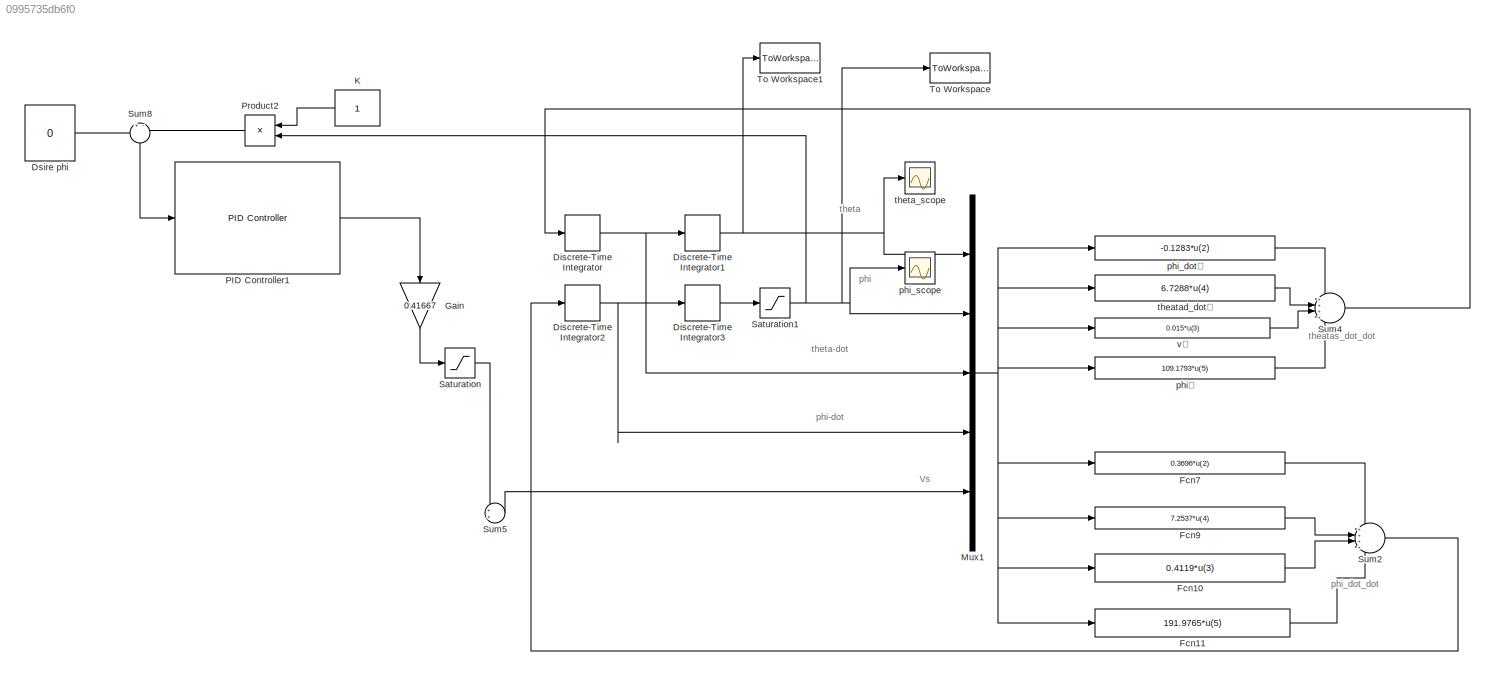
MODEL slx_0995735db6f0
KIND model
CONFIG AbsTol = auto
CONFIG EnableMultiTasking = on
CONFIG FixedStep = auto
CONFIG MaxStep = auto
CONFIG MinStep = auto
CONFIG RelTol = 1e-3
CONFIG SampleTimeConstraint = Unconstrained
CONFIG Solver = VariableStepAuto
CONFIG SolverName = VariableStepAuto
CONFIG StartTime = 0.0
CONFIG StopTime = 1.5
BLOCK [DiscreteIntegrator] Discrete-Time Integrator
  ICPrevOutput = DiscIntNeverNeededParam
  ICPrevScaledInput = DiscIntNeverNeededParam
  InitialConditionSetting = Auto
  Ports = [1, 1]
  SampleTime = 0.001
BLOCK [DiscreteIntegrator] Discrete-Time Integrator1
  ICPrevOutput = DiscIntNeverNeededParam
  ICPrevScaledInput = DiscIntNeverNeededParam
  InitialConditionSetting = Auto
  Ports = [1, 1]
  SampleTime = 0.001
BLOCK [DiscreteIntegrator] Discrete-Time Integrator2
  ICPrevOutput = DiscIntNeverNeededParam
  ICPrevScaledInput = DiscIntNeverNeededParam
  InitialConditionSetting = Auto
  Ports = [1, 1]
  SampleTime = 0.001
BLOCK [DiscreteIntegrator] Discrete-Time Integrator3
  ICPrevOutput = DiscIntNeverNeededParam
  ICPrevScaledInput = DiscIntNeverNeededParam
  InitialCondition = pi/180
  InitialConditionSetting = Auto
  Ports = [1, 1]
  SampleTime = 0.001
  gainval = 1
BLOCK [Constant] Dsire phi
  SampleTime = 0.001
  Value = 0
BLOCK [Fcn] Fcn10
  Expr = 0.4119*u(3)
BLOCK [Fcn] Fcn11
  Expr = 191.9765*u(5)
BLOCK [Fcn] Fcn7
  Expr = 0.3696*u(2)
BLOCK [Fcn] Fcn9
  Expr = 7.2537*u(4)
BLOCK [Gain] Gain
  Gain = 0.41667
  OutDataTypeStr = Inherit: Inherit via internal rule
  ParamDataTypeStr = Inherit: Inherit via internal rule
  SaturateOnIntegerOverflow = off
BLOCK [Constant] K
  SampleTime = 0.001
  VectorParams1D = off
BLOCK [Mux] Mux1
  DisplayOption = bar
  Inputs = 5
  Ports = [5, 1]
BLOCK [Reference] PID Controller1  REF=simulink/Continuous/PID Controller
  Ports = [1, 1]
  SourceBlock = simulink/Continuous/PID Controller
  SourceProductBaseCode = SL
  SourceProductName = Simulink
  SourceType = PID 1dof
BLOCK [Product] Product2
  InputSameDT = off
  OutDataTypeStr = Inherit: Inherit via internal rule
  Ports = [2, 1]
  RndMeth = Floor
  SaturateOnIntegerOverflow = off
BLOCK [Saturate] Saturation
  InputPortMap = u0
  LowerLimit = -5
  Ports = [1, 1]
  UpperLimit = 5
BLOCK [Saturate] Saturation1
  InputPortMap = u0
  LowerLimit = -1.75
  Ports = [1, 1]
  UpperLimit = 1.75
BLOCK [Sum] Sum2
  IconShape = round
  InputSameDT = off
  Inputs = ++++
  OutDataTypeStr = Inherit: Inherit via internal rule
  Ports = [4, 1]
  SaturateOnIntegerOverflow = off
BLOCK [Sum] Sum4
  IconShape = round
  InputSameDT = off
  Inputs = ++++
  OutDataTypeStr = Inherit: Inherit via internal rule
  Ports = [4, 1]
  SaturateOnIntegerOverflow = off
BLOCK [Sum] Sum5
  IconShape = round
  InputSameDT = off
  OutDataTypeStr = Inherit: Inherit via internal rule
  Ports = [2, 1]
  SaturateOnIntegerOverflow = off
BLOCK [Sum] Sum8
  IconShape = round
  InputSameDT = off
  Inputs = +-
  OutDataTypeStr = Inherit: Inherit via internal rule
  Ports = [2, 1]
  SaturateOnIntegerOverflow = off
BLOCK [ToWorkspace] To Workspace
  FixptAsFi = on
  MaxDataPoints = inf
  Ports = [1]
  SampleTime = -1
  Save2DSignal = 3-D array (concatenate along third dimension)
  VariableName = phi
BLOCK [ToWorkspace] To Workspace1
  FixptAsFi = on
  MaxDataPoints = inf
  Ports = [1]
  SampleTime = -1
  Save2DSignal = 3-D array (concatenate along third dimension)
  VariableName = theatad
BLOCK [Fcn] phi_dot項
  Expr = -0.1283*u(2)
BLOCK [Scope] phi_scope
  Floating = off
  NumInputPorts = 1
  Ports = [1]
  ScopeSpecificationString = Simulink.scopes.TimeScopeBlockCfg('CurrentConfiguration', extmgr.ConfigurationSet(extmgr.Configuration('Core','General UI',true),extmgr.Configuration('Core','Source UI',true),extmgr.Configuration('Sources','WiredSimulink',true,'DataLoggingVariableName','ScopeData1'),extmgr.Configuration('Visuals','Time Domain',true,'TimeAxisLabels','All','SerializedDisplays',{struct('MinYLimReal','-0.03','MaxYLimR...<+1505ch>
BLOCK [Fcn] phi項
  Expr = 109.1793*u(5)
BLOCK [Fcn] theatad_dot項
  Expr = 6.7288*u(4)
BLOCK [Scope] theta_scope
  Floating = off
  NumInputPorts = 1
  Ports = [1]
  ScopeSpecificationString = Simulink.scopes.TimeScopeBlockCfg('CurrentConfiguration', extmgr.ConfigurationSet(extmgr.Configuration('Core','General UI',true),extmgr.Configuration('Core','Source UI',true),extmgr.Configuration('Sources','WiredSimulink',true),extmgr.Configuration('Visuals','Time Domain',true,'SerializedDisplays',{struct('MinYLimReal','-0.5','MaxYLimReal','0.5','YLabelReal','','MinYLimMag','0.00000','MaxYLimMag',...<+1483ch>
BLOCK [Fcn] v項
  Expr = 0.015*u(3)
ANNOTATION (root): Vs
ANNOTATION (root): phi-dot
ANNOTATION (root): phi
ANNOTATION (root): phi_dot_dot
ANNOTATION (root): theatas_dot_dot
ANNOTATION (root): theta-dot
ANNOTATION (root): theta
NET Discrete-Time Integrator1:1 -> Mux1:1, To Workspace1:1, theta_scope:1
NET Discrete-Time Integrator2:1 -> Discrete-Time Integrator3:1, Mux1:4
LINE Discrete-Time Integrator3:1 -> Saturation1:1
NET Discrete-Time Integrator:1 -> Discrete-Time Integrator1:1, Mux1:3
LINE Dsire phi:1 -> Sum8:1
LINE Fcn10:1 -> Sum2:3
LINE Fcn11:1 -> Sum2:4
LINE Fcn7:1 -> Sum2:1
LINE Fcn9:1 -> Sum2:2
LINE Gain:1 -> Saturation:1
LINE K:1 -> Product2:1
NET Mux1:1 -> Fcn10:1, Fcn11:1, Fcn7:1, Fcn9:1, phi_dot項:1, phi項:1, theatad_dot項:1, v項:1
LINE PID Controller1:1 -> Gain:1
LINE Product2:1 -> Sum8:2
NET Saturation1:1 -> Mux1:2, Product2:2, To Workspace:1, phi_scope:1
LINE Saturation:1 -> Sum5:1
LINE Sum2:1 -> Discrete-Time Integrator2:1
LINE Sum4:1 -> Discrete-Time Integrator:1
LINE Sum5:1 -> Mux1:5
LINE Sum8:1 -> PID Controller1:1
LINE phi_dot項:1 -> Sum4:1
LINE phi項:1 -> Sum4:4
LINE theatad_dot項:1 -> Sum4:2
LINE v項:1 -> Sum4:3
note: NET lines group one-source signal fan-out (src -> all destinations, sorted); 1:1 wires keep LINE
